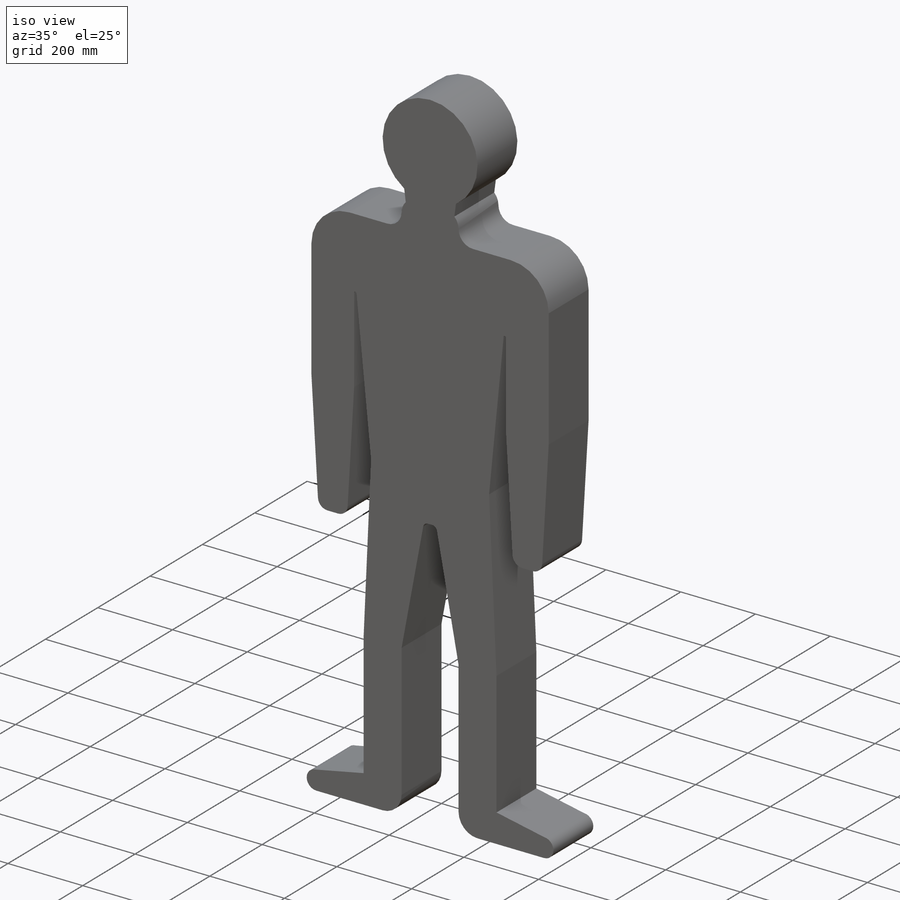
[diagram: iso view]
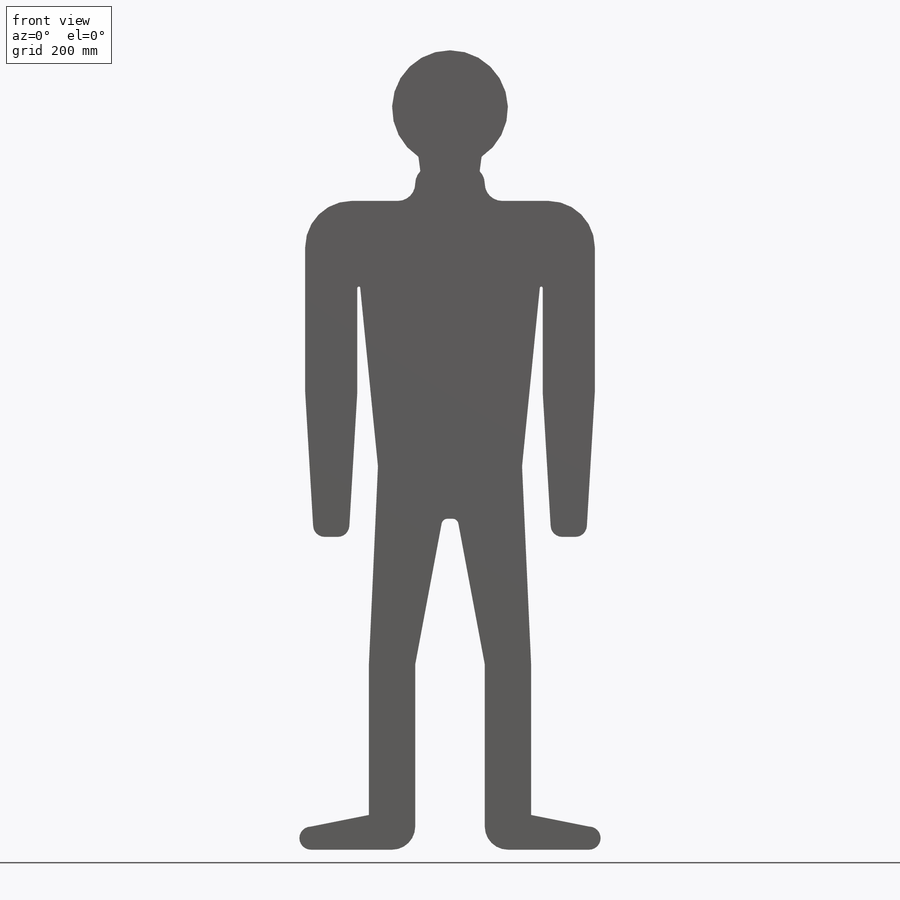
[diagram: front view]
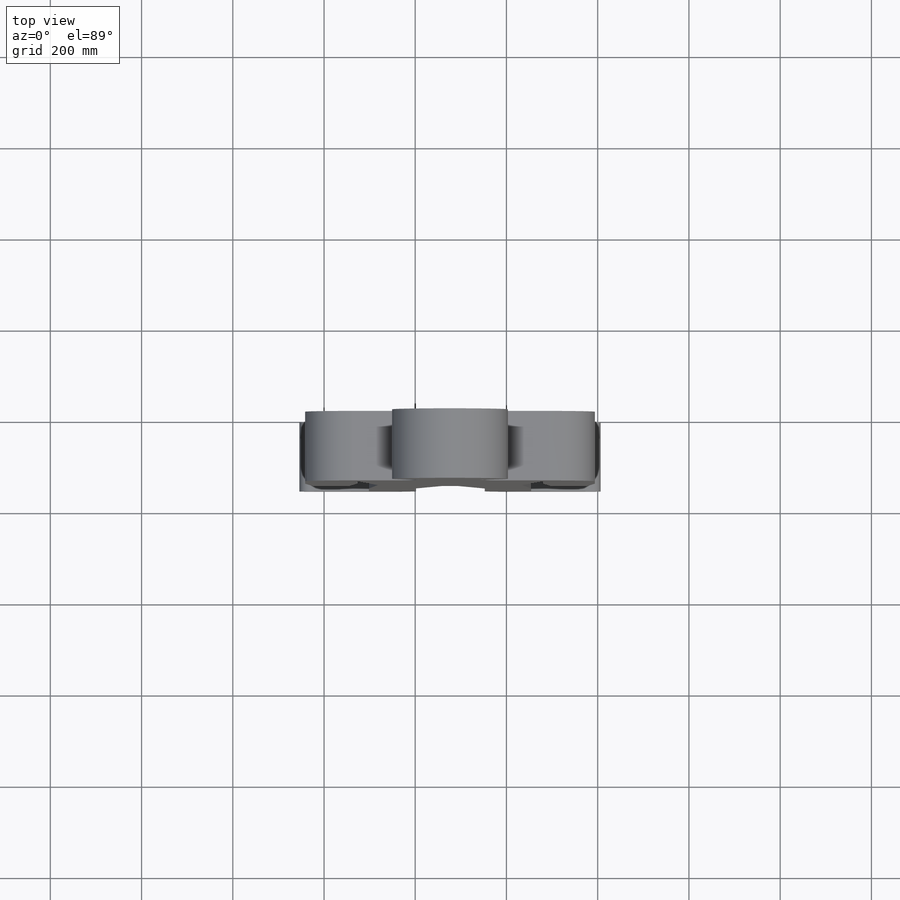
[diagram: top view]
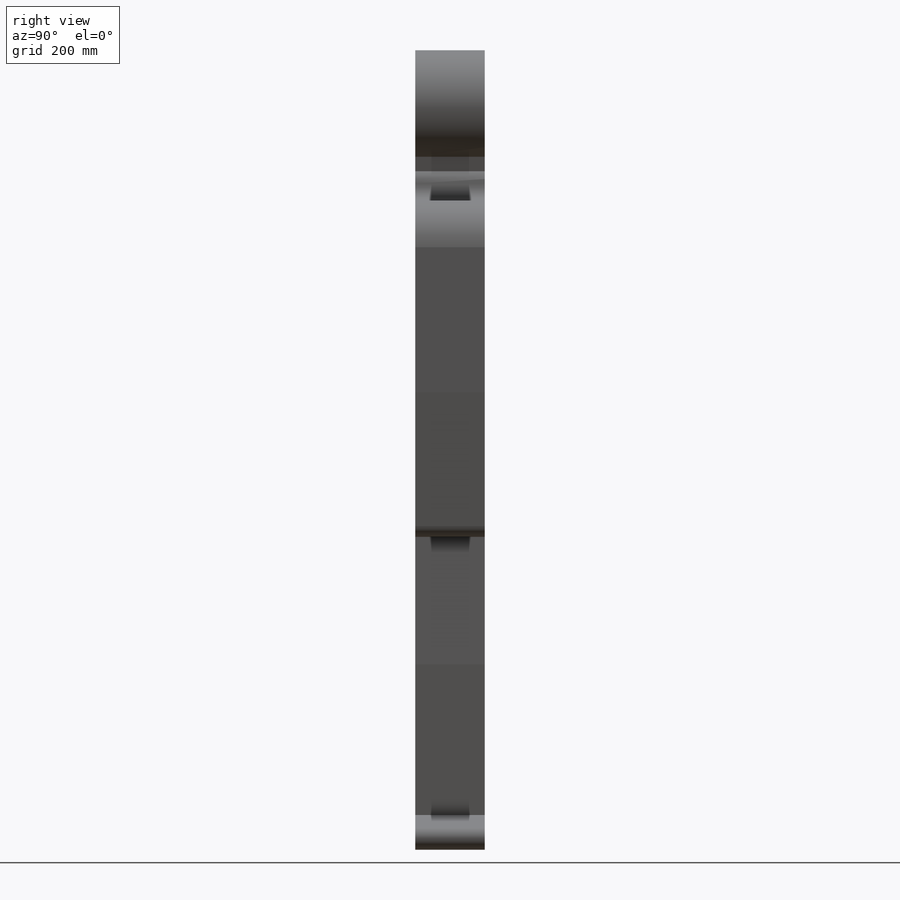
[diagram: right view]
SOLIDWORKS PART (.sldprt)
format: sldprt  version: not decoded by parser v0  size: 544,768 bytes
history: native  units: mm
features: sketch x12, extrude x10, fillet x6, cut_extrude x2, material x1 (+13 scaffold rows collapsed)
feature tree (44):
  scaffold x13  (default folders/planes/origin — collapsed)
  material  "Material <not specified>"
  sketch  "Sketch1"  dims[c1.D19=254.0mm c1.D20=152.4mm c1.D1=50.8mm c1.D2=228.6mm c1.D3=101.6mm c1.D4=762.0mm c1.D5=355.6mm c1.D6=101.6mm c1.D7=228.6mm c1.D8=609.6mm c1.D9=~369.977358mm c2.D6=228.6mm c2.D7=101.6mm c2.D9=101.6mm c2.D10=76.2mm c2.D11=76.2mm c2.D12=660.4mm c2.D13=76.2mm c2.D14=76.2mm c2.D15=660.4mm c2.D16=76.2mm c2.D17=152.4mm c2.D18=101.6mm c2.D20=127.0mm c2.D21=76.2mm]
  extrude  "Boss-Extrude1"  Depth=152.4mm
  sketch  "Sketch2"  dims[D1=406.4mm D2=50.8mm]
  extrude  "Boss-Extrude2"  [1 undecoded]
  sketch  "Sketch3"
  extrude  "Boss-Extrude3"  [1 undecoded]
  sketch  "Sketch4"
  extrude  "Boss-Extrude4"  [1 undecoded]
  sketch  "Sketch5"  dims[D1=25.4mm]
  extrude  "Boss-Extrude5"  [1 undecoded]
  sketch  "Sketch6"
  cut_extrude  "Cut-Extrude1"  [1 undecoded]
  sketch  "Sketch7"  dims[D1=279.4mm]
  extrude  "Boss-Extrude6"  [1 undecoded]
  sketch  "Sketch8"
  extrude  "Boss-Extrude7"  [1 undecoded]
  sketch  "Sketch9"  dims[D1=736.6mm D2=38.1mm]
  extrude  "Boss-Extrude8"  [1 undecoded]
  fillet  "Fillet2"  Radius=101.6mm
  sketch  "Sketch10"
  cut_extrude  "Cut-Extrude2"  [1 undecoded]
  fillet  "Fillet3"  Radius=50.8mm
  fillet  "Fillet5"  Radius=38.1mm
  fillet  "Fillet6"  Radius=12.7mm
  fillet  "Fillet7"  Radius=25.4mm
  fillet  "Fillet8"  Radius=3.175mm
  sketch  "Sketch11"
  extrude  "Boss-Extrude9"  [1 undecoded]
  sketch  "Sketch12"
  extrude  "Boss-Extrude10"  [1 undecoded]
decode coverage: 12 of 30 modeling features carry decoded parameters
note: ~ marks probable driven/reference dimensions
note: 11 parameter values undecoded
summary: no parameter record found for 11 features
note: suppression state not decoded; provenance and decode notes live in map.json
